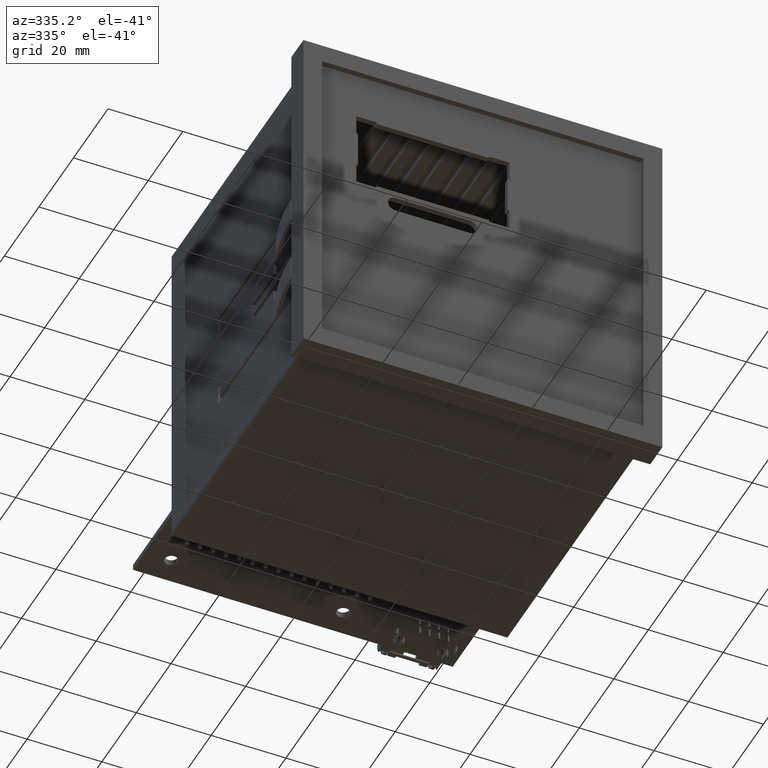
[diagram: clean part render]
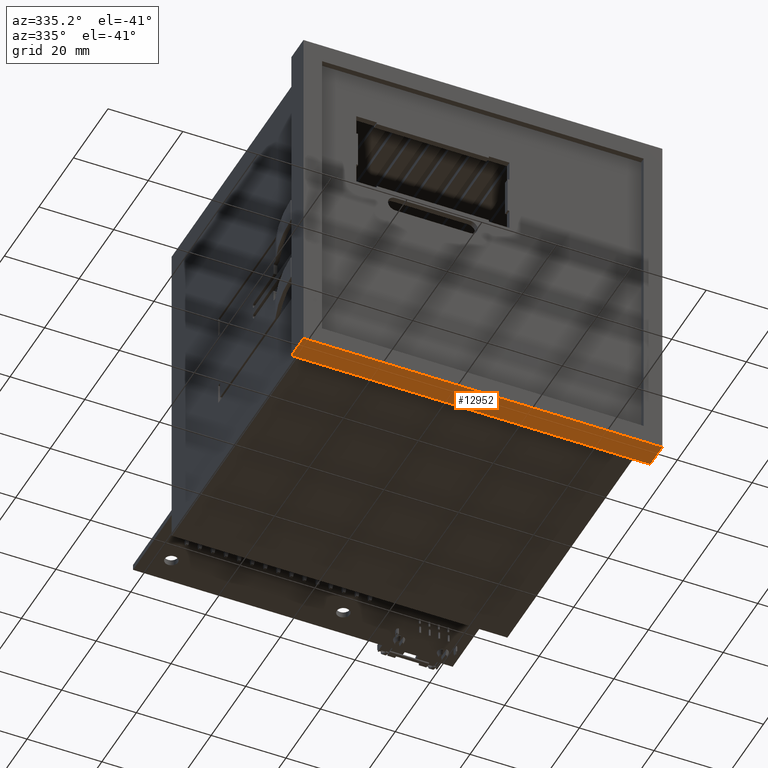
[diagram: same view with one face highlighted and labeled with its STEP entity id]
A machine part, auxiliary view. The second image highlights one B-rep face of the part: STEP entity #12952.
In plain terms, the highlighted planar face has unit normal (-0, -0, -1).
Its self-contained STEP definition (entity closure, byte-faithful):
#12834=CARTESIAN_POINT('',(-100.957091689717340,-78.796288197874318,6.500000000000000));
#12835=VERTEX_POINT('',#12834);
#12852=CARTESIAN_POINT('',(-100.957091689717340,-78.796288197874318,-0.500000000000000));
#12853=VERTEX_POINT('',#12852);
#12860=CARTESIAN_POINT('',(-100.957091689717340,-78.796288197874318,-0.500000000000000));
#12861=DIRECTION('',(0.0,0.0,1.0));
#12862=VECTOR('',#12861,7.0);
#12863=LINE('',#12860,#12862);
#12864=EDGE_CURVE('',#12853,#12835,#12863,.T.);
#12905=CARTESIAN_POINT('',(-100.957091689717330,-174.796288197874330,6.500000000000000));
#12906=VERTEX_POINT('',#12905);
#12913=CARTESIAN_POINT('',(-100.957091689717330,-174.796288197874330,-0.500000000000000));
#12914=VERTEX_POINT('',#12913);
#12915=CARTESIAN_POINT('',(-100.957091689717330,-174.796288197874330,-0.500000000000000));
#12916=DIRECTION('',(0.0,0.0,1.0));
#12917=VECTOR('',#12916,7.0);
#12918=LINE('',#12915,#12917);
#12919=EDGE_CURVE('',#12914,#12906,#12918,.T.);
#12931=CARTESIAN_POINT('',(-100.957091689717330,-174.796288197874330,-0.500000000000000));
#12932=DIRECTION('',(-1.0,0.0,0.0));
#12933=DIRECTION('',(0.0,0.0,1.0));
#12934=AXIS2_PLACEMENT_3D('',#12931,#12932,#12933);
#12935=PLANE('',#12934);
#12936=CARTESIAN_POINT('',(-100.957091689717330,-174.796288197874330,6.500000000000000));
#12937=DIRECTION('',(0.0,1.0,0.0));
#12938=VECTOR('',#12937,96.000000000000014);
#12939=LINE('',#12936,#12938);
#12940=EDGE_CURVE('',#12906,#12835,#12939,.T.);
#12941=ORIENTED_EDGE('',*,*,#12940,.T.);
#12942=ORIENTED_EDGE('',*,*,#12864,.F.);
#12943=CARTESIAN_POINT('',(-100.957091689717330,-174.796288197874330,-0.500000000000000));
#12944=DIRECTION('',(0.0,1.0,0.0));
#12945=VECTOR('',#12944,96.000000000000014);
#12946=LINE('',#12943,#12945);
#12947=EDGE_CURVE('',#12914,#12853,#12946,.T.);
#12948=ORIENTED_EDGE('',*,*,#12947,.F.);
#12949=ORIENTED_EDGE('',*,*,#12919,.T.);
#12950=EDGE_LOOP('',(#12941,#12942,#12948,#12949));
#12951=FACE_OUTER_BOUND('',#12950,.T.);
#12952=ADVANCED_FACE('',(#12951),#12935,.T.);